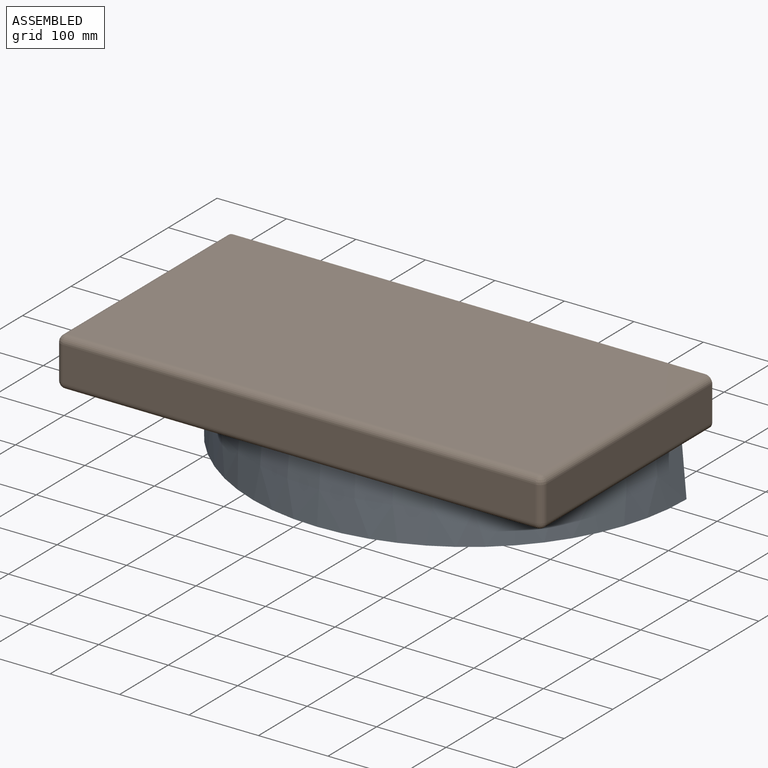
[diagram: assembled view]
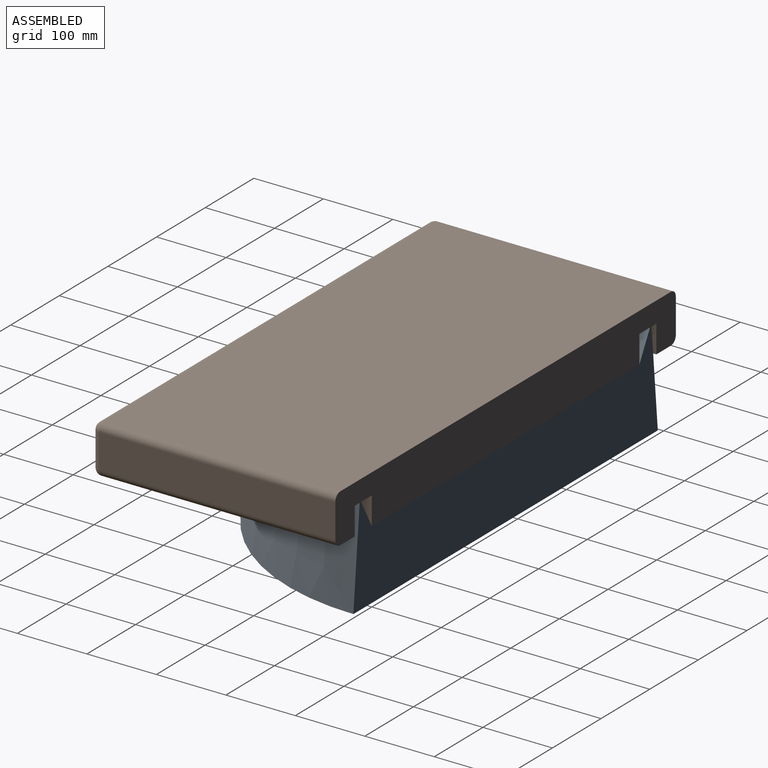
[diagram: assembled view, second angle]
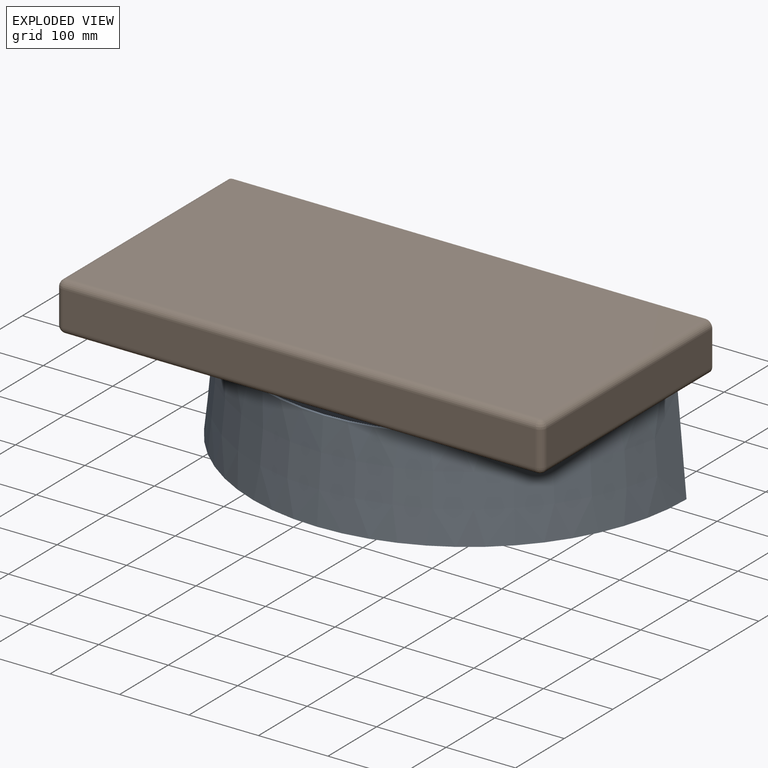
[diagram: exploded view]
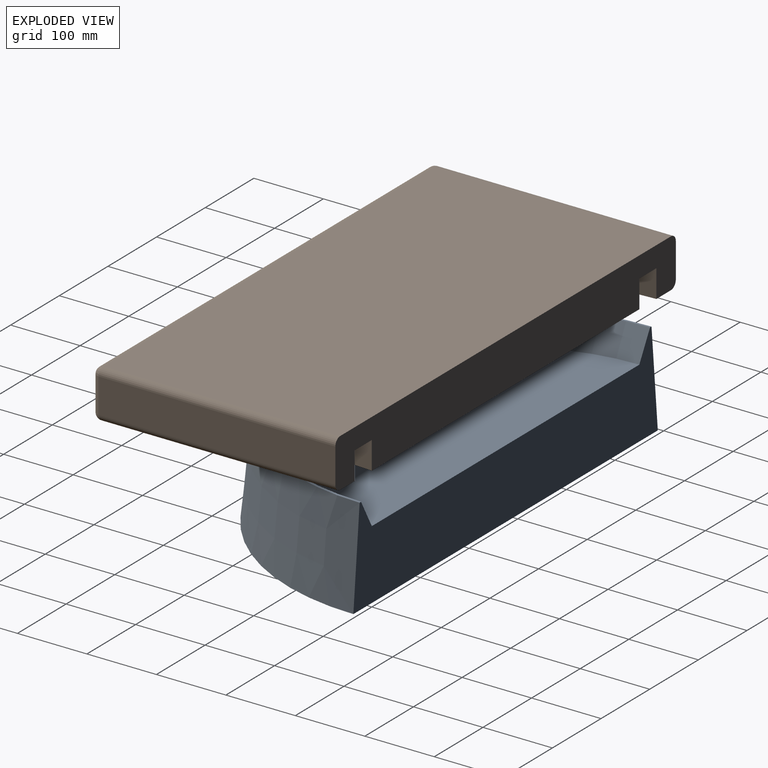
[diagram: exploded view, second angle]
ASSEMBLY  parts=2 mates=2
PART A: 6 faces, bbox 625.8x312.9x140 mm
  f0: cone r=312.92mm half-angle=5.3deg, axis (0,0,-1), area 135359.5mm2, adj f1,f4,f5
  f1: plane 625.83x312.92mm, normal (0,0,-1), area 153806.3mm2, adj f0,f5
  f2: plane 550x275mm, normal (0,0,1), area 118791.5mm2, adj f3,f5
  f3: cone r=297mm half-angle=28.8deg, axis (0,0,1), area 41017.1mm2, adj f2,f4,f5
  f4: plane 600x300mm, normal (0,0,1), area 2813.3mm2, adj f0,f3,f5
  f5: plane 625.83x140mm, normal (0,1,0), area 62928.2mm2, adj f0,f1,f2,f3,f4
PART B: 22 faces, bbox 700x350x70 mm
  f0: plane 340x50mm, normal (-1,0,0), area 17000mm2, adj f10,f15,f16,f21
  f1: plane 340x50mm, normal (1,0,0), area 17000mm2, adj f5,f8,f12,f21
  f2: plane 680x50mm, normal (0,-1,0), area 34000mm2, adj f5,f9,f10,f11
  f3: plane 680x340mm, normal (0,0,1), area 231200mm2, adj f8,f9,f15,f21
  f4: plane 680x340mm, normal (0,0,-1), area 80246.5mm2, adj f11,f12,f16,f18,f21
  f5: cylinder r=10mm len=50mm, axis (0,0,1), area 785.4mm2, adj f1,f2,f6,f7
  f6: sphere r=10mm, area 157.1mm2, adj f5,f8,f9
  f7: sphere r=10mm, area 157.1mm2, adj f5,f11,f12
  f8: cylinder r=10mm len=340mm, axis (0,-1,0), area 5340.7mm2, adj f1,f3,f6,f21
  f9: cylinder r=10mm len=680mm, axis (-1,0,0), area 10681.4mm2, adj f2,f3,f6,f13
  f10: cylinder r=10mm len=50mm, axis (0,0,-1), area 785.4mm2, adj f0,f2,f13,f14
  f11: cylinder r=10mm len=680mm, axis (1,0,0), area 10681.4mm2, adj f2,f4,f7,f14
  f12: cylinder r=10mm len=340mm, axis (0,1,0), area 5340.7mm2, adj f1,f4,f7,f21
  f13: sphere r=10mm, area 157.1mm2, adj f9,f10,f15
  f14: sphere r=10mm, area 157.1mm2, adj f10,f11,f16
  f15: cylinder r=10mm len=340mm, axis (0,1,0), area 5340.7mm2, adj f0,f3,f13,f21
  f16: cylinder r=10mm len=340mm, axis (0,-1,0), area 5340.7mm2, adj f0,f4,f14,f21
  f17: cylinder r=275mm len=550mm, axis (0,0,-1), area 34557.5mm2, adj f19,f20,f21
  f18: cylinder r=310mm len=620mm, axis (0,0,-1), area 38955.7mm2, adj f4,f19,f21
  f19: plane 620x310mm, normal (0,0,-1), area 32162.1mm2, adj f17,f18,f21
  f20: plane 550x275mm, normal (0,0,-1), area 118791.5mm2, adj f17,f21
  f21: plane 700x70mm, normal (0,1,0), area 46114.2mm2, adj f0,f1,f3,f4,f8,f12,f15,f16
PLACE A t=(-162.92,8.5,210.59)mm
PLACE B t=(938.6,62.88,310.59)mm
MATE planar B.f17 <-> A.f2  axis (0,0,-1) through (-162.92,8.5,310.59)mm
MATE cylindrical A.f3 <-> B.f17  axis (0,0,-1) through (-162.92,8.5,280.59)mm
